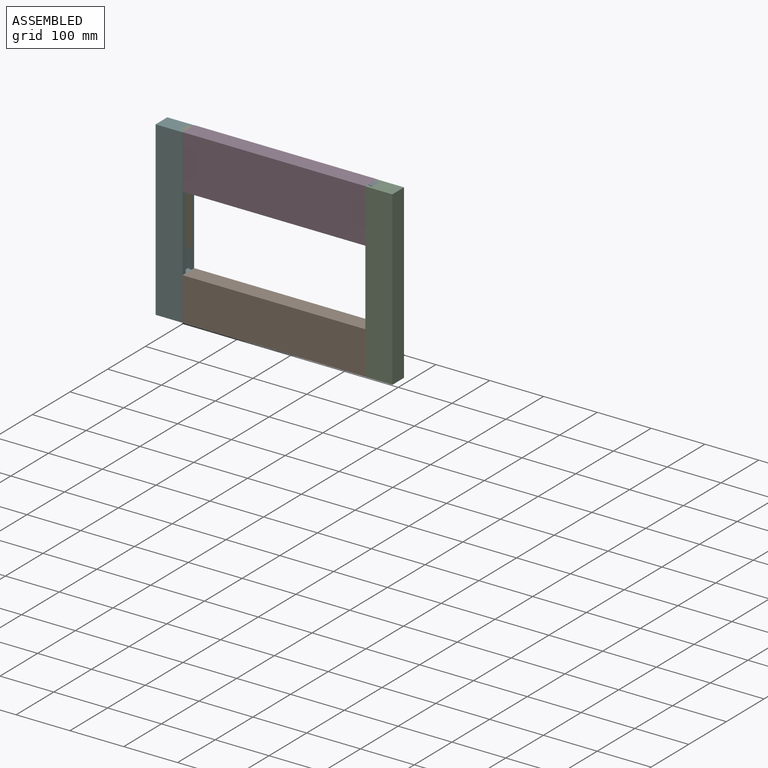
[diagram: assembled view]
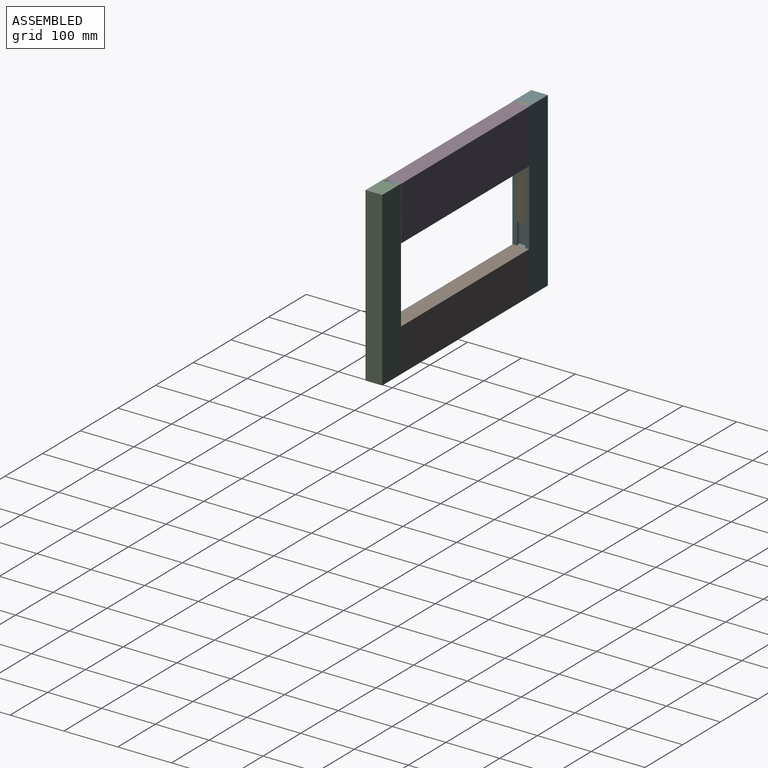
[diagram: assembled view, second angle]
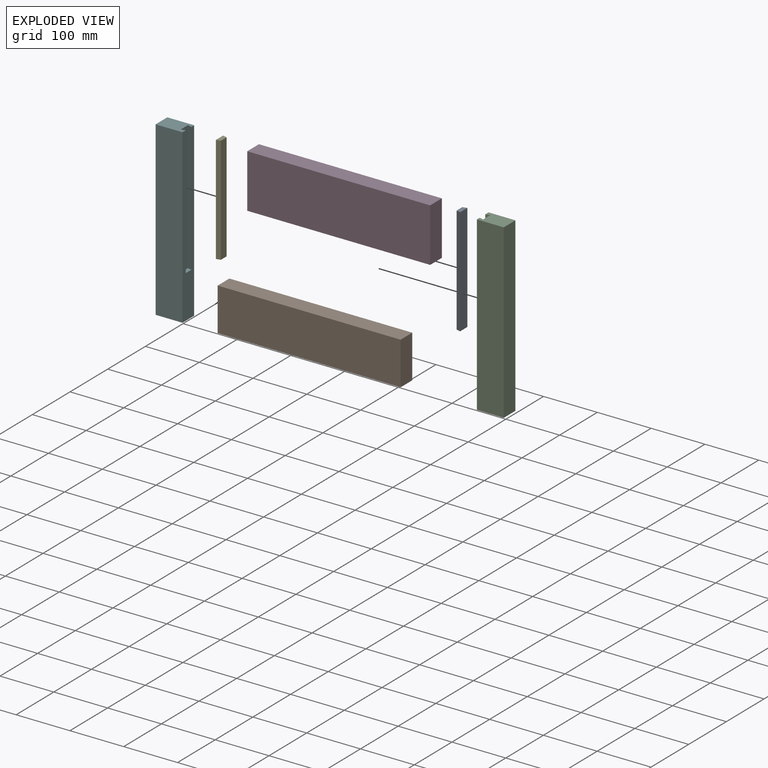
[diagram: exploded view]
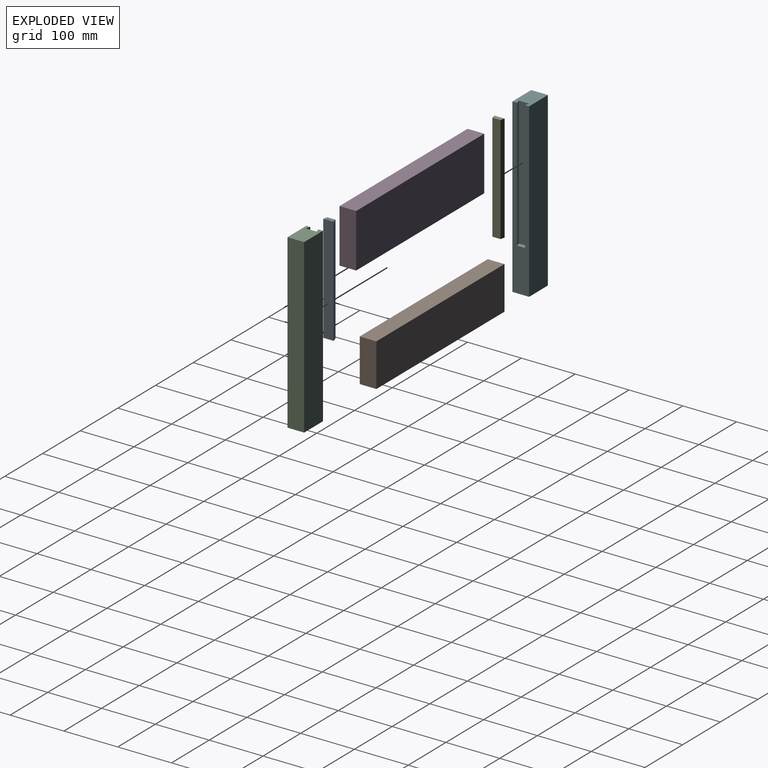
[diagram: exploded view, second angle]
ASSEMBLY  parts=6 mates=6
PART A: 6 faces, bbox 8x19x200 mm
  f0: plane 200x15mm, normal (1,0,0), area 3000mm2, adj f1,f3,f4,f5
  f1: plane 200x8mm, normal (0.24,0.97,0), area 1649mm2, adj f0,f2,f4,f5
  f2: plane 200x18.99mm, normal (-1,0,0), area 3797.8mm2, adj f1,f3,f4,f5
  f3: plane 200x8mm, normal (0.24,-0.97,0), area 1649mm2, adj f0,f2,f4,f5
  f4: plane 18.99x8mm, normal (0,0,-1), area 136mm2, adj f0,f1,f2,f3
  f5: plane 18.99x8mm, normal (0,0,1), area 136mm2, adj f0,f1,f2,f3
PART B: 6 faces, bbox 340x31x80 mm
  f0: plane 340x80mm, normal (0,-1,0), area 27200mm2, adj f1,f2,f3,f5
  f1: plane 80x31mm, normal (-1,0,0), area 2480mm2, adj f0,f2,f3,f4
  f2: plane 340x31mm, normal (0,0,-1), area 10540mm2, adj f0,f1,f4,f5
  f3: plane 340x31mm, normal (0,0,1), area 10540mm2, adj f0,f1,f4,f5
  f4: plane 340x80mm, normal (0,1,0), area 27200mm2, adj f1,f2,f3,f5
  f5: plane 80x31mm, normal (1,0,0), area 2480mm2, adj f0,f2,f3,f4
PART C: 10 faces, bbox 50x31x320 mm
  f0: plane 320x31mm, normal (1,0,0), area 6320mm2, adj f1,f3,f4,f5,f6,f7,f9
  f1: plane 320x50mm, normal (0,1,0), area 16000mm2, adj f0,f2,f4,f5
  f2: plane 320x31mm, normal (-1,0,0), area 9920mm2, adj f1,f3,f4,f5
  f3: plane 320x50mm, normal (0,-1,0), area 16000mm2, adj f0,f2,f4,f5
  f4: plane 50x31mm, normal (0,0,1), area 1414mm2, adj f0,f1,f2,f3,f7,f8,f9
  f5: plane 50x31mm, normal (0,0,-1), area 1550mm2, adj f0,f1,f2,f3
  f6: plane 18.99x8mm, normal (0,0,1), area 136mm2, adj f0,f7,f8,f9
  f7: plane 240x8mm, normal (-0.24,-0.97,0), area 1978.8mm2, adj f0,f4,f6,f8
  f8: plane 240x18.99mm, normal (1,0,0), area 4557.4mm2, adj f4,f6,f7,f9
  f9: plane 240x8mm, normal (-0.24,0.97,0), area 1978.8mm2, adj f0,f4,f6,f8
PART D: 6 faces, bbox 340x31x100 mm
  f0: plane 100x31mm, normal (1,0,0), area 3100mm2, adj f1,f2,f3,f4
  f1: plane 340x31mm, normal (0,0,1), area 10540mm2, adj f0,f2,f4,f5
  f2: plane 340x100mm, normal (0,-1,0), area 34000mm2, adj f0,f1,f3,f5
  f3: plane 340x31mm, normal (0,0,-1), area 10540mm2, adj f0,f2,f4,f5
  f4: plane 340x100mm, normal (0,1,0), area 34000mm2, adj f0,f1,f3,f5
  f5: plane 100x31mm, normal (-1,0,0), area 3100mm2, adj f1,f2,f3,f4
PART E: same geometry as A
PART F: same geometry as C
PLACE A rot(axis=(0,0,1),180deg) t=(0,1.24,0)mm
PLACE B at identity fixed
PLACE C rot(axis=(0,0,1),180deg) t=(0,0,0)mm
PLACE D t=(0,0.62,0)mm
PLACE E at identity
PLACE F at identity
MATE fastened E.f5 <-> D.f1  axis (0,0,1) through (-170,0.62,320)mm
MATE fastened A.f5 <-> D.f1  axis (0,0,1) through (170,0.62,320)mm
MATE fastened D.f5 <-> E.f0  axis (-1,0,0) through (-170,0.62,320)mm
MATE fastened C.f0 <-> B.f5  axis (-1,0,0) through (170,-15.5,0)mm
MATE fastened F.f0 <-> B.f1  axis (1,0,0) through (-170,-15.5,0)mm
MATE slider E.f5 <-> F.f4  axis (0,0,1) through (-178,0.62,320)mm
